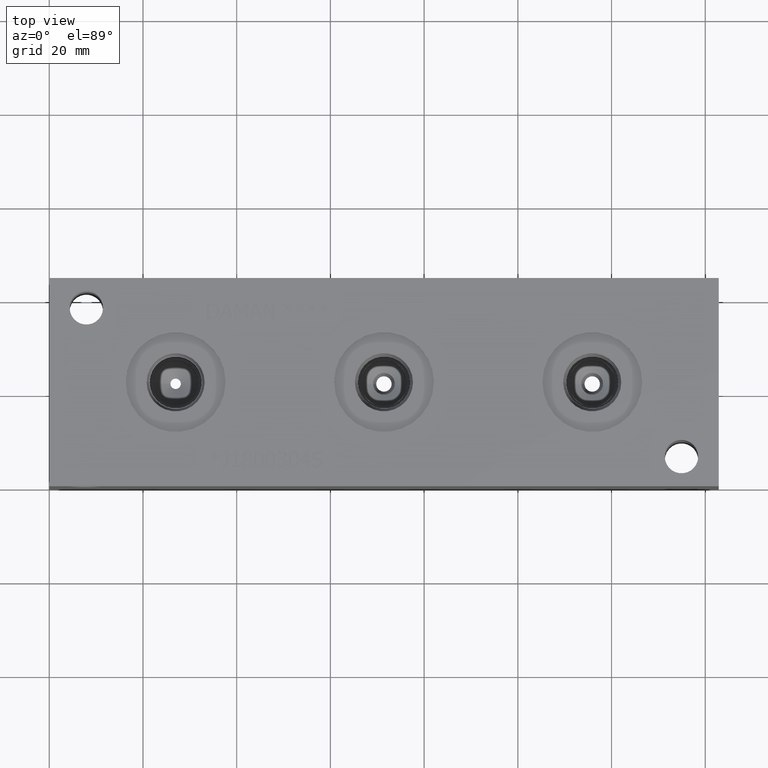
[diagram: clean part render]
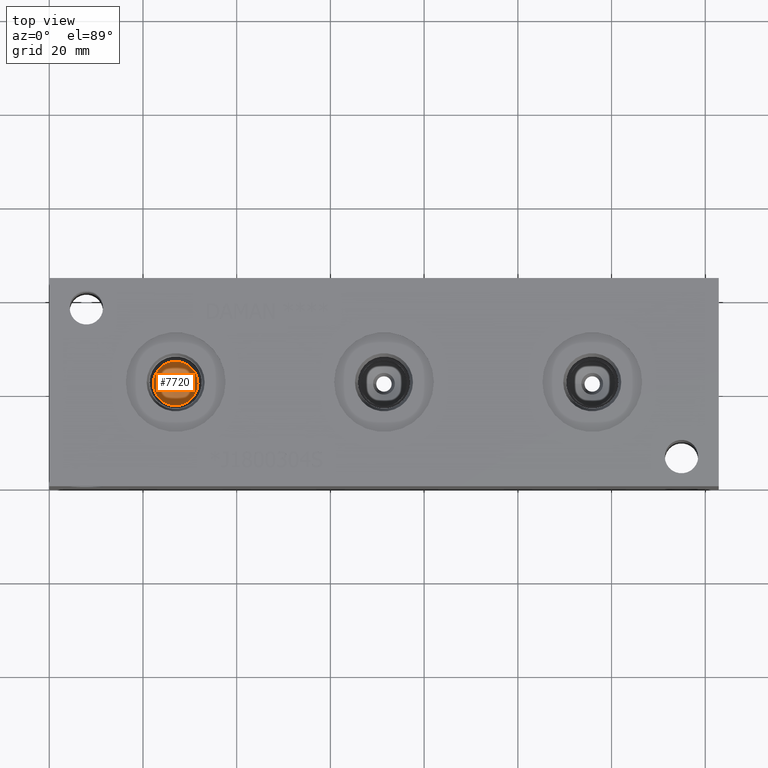
[diagram: same view with one face highlighted and labeled with its STEP entity id]
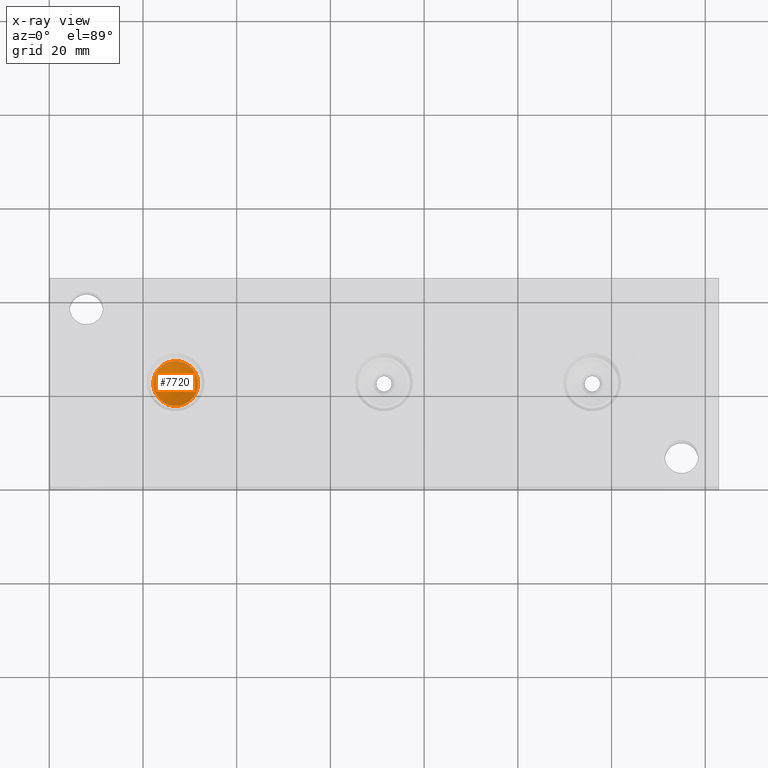
[diagram: x-ray of the same camera — body ghosted, the highlighted face saturated]
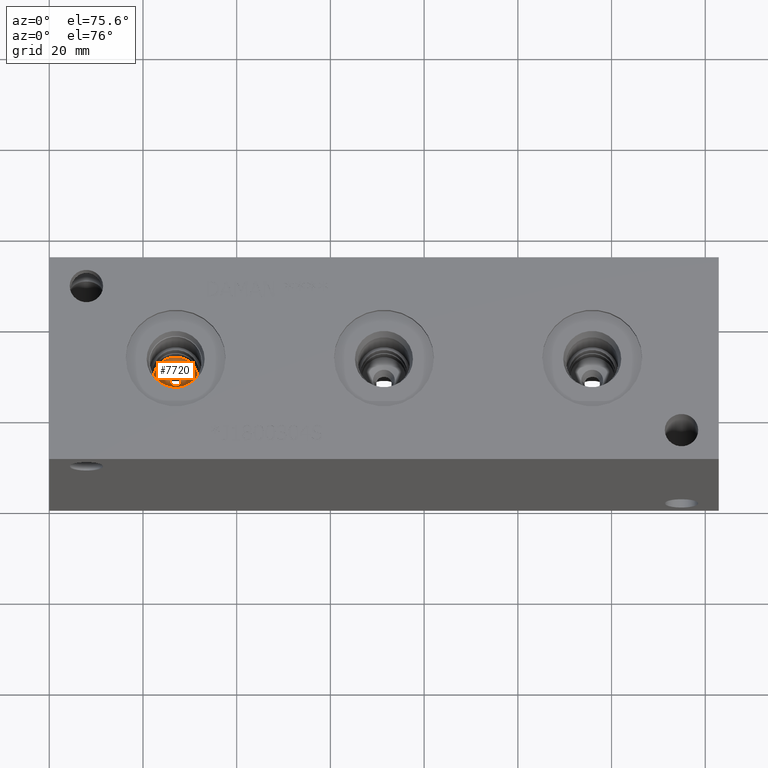
[diagram: same view with one face highlighted and labeled with its STEP entity id]
A machine part, top view. The second image highlights one B-rep face of the part: STEP entity #7720.
The next image is the same camera in x-ray: the body ghosted, the highlighted face saturated — about 0% of this face is hidden behind the body in this view.
A second angle (auxiliary view) of the same face is appended — the face is thin or edge-on in the first view.
In plain terms, the highlighted conical surface has half-angle 60 deg.
Its self-contained STEP definition (entity closure, byte-faithful):
#79=CONICAL_SURFACE('',#8137,2.38125,1.0471975511966);
#135=CIRCLE('',#8042,1.1090189291836);
#185=CIRCLE('',#8138,4.7625);
#186=CIRCLE('',#8139,4.7625);
#867=FACE_OUTER_BOUND('',#1307,.T.);
#1307=EDGE_LOOP('',(#6839,#6840,#6841,#6842,#6843));
#2053=LINE('',#13206,#2788);
#2788=VECTOR('',#9667,2.38125);
#3648=VERTEX_POINT('',#13021);
#3702=VERTEX_POINT('',#13203);
#3703=VERTEX_POINT('',#13204);
#4669=EDGE_CURVE('',#3648,#3648,#135,.T.);
#4758=EDGE_CURVE('',#3702,#3703,#185,.T.);
#4759=EDGE_CURVE('',#3703,#3648,#2053,.T.);
#4760=EDGE_CURVE('',#3703,#3702,#186,.T.);
#6839=ORIENTED_EDGE('',*,*,#4758,.T.);
#6840=ORIENTED_EDGE('',*,*,#4759,.T.);
#6841=ORIENTED_EDGE('',*,*,#4669,.T.);
#6842=ORIENTED_EDGE('',*,*,#4759,.F.);
#6843=ORIENTED_EDGE('',*,*,#4760,.T.);
#7720=ADVANCED_FACE('',(#867),#79,.F.);
#8042=AXIS2_PLACEMENT_3D('',#13023,#9442,#9443);
#8137=AXIS2_PLACEMENT_3D('',#13202,#9663,#9664);
#8138=AXIS2_PLACEMENT_3D('',#13205,#9665,#9666);
#8139=AXIS2_PLACEMENT_3D('',#13207,#9668,#9669);
#9442=DIRECTION('center_axis',(0.,0.,-1.));
#9443=DIRECTION('ref_axis',(1.,0.,0.));
#9663=DIRECTION('center_axis',(0.,0.,1.));
#9664=DIRECTION('ref_axis',(1.,0.,0.));
#9665=DIRECTION('center_axis',(0.,0.,1.));
#9666=DIRECTION('ref_axis',(1.,0.,0.));
#9667=DIRECTION('',(0.866025403784439,1.06057523872491E-16,-0.5));
#9668=DIRECTION('center_axis',(0.,0.,1.));
#9669=DIRECTION('ref_axis',(1.,0.,0.));
#13021=CARTESIAN_POINT('',(25.8657810708164,22.225,24.7290717202849));
#13023=CARTESIAN_POINT('Origin',(26.9748,22.225,24.7290717202849));
#13202=CARTESIAN_POINT('Origin',(26.9748,22.225,25.4635946714922));
#13203=CARTESIAN_POINT('',(31.7373,22.225,26.83841));
#13204=CARTESIAN_POINT('',(22.2123,22.225,26.83841));
#13205=CARTESIAN_POINT('Origin',(26.9748,22.225,26.83841));
#13206=CARTESIAN_POINT('',(24.59355,22.225,25.4635946714922));
#13207=CARTESIAN_POINT('Origin',(26.9748,22.225,26.83841));